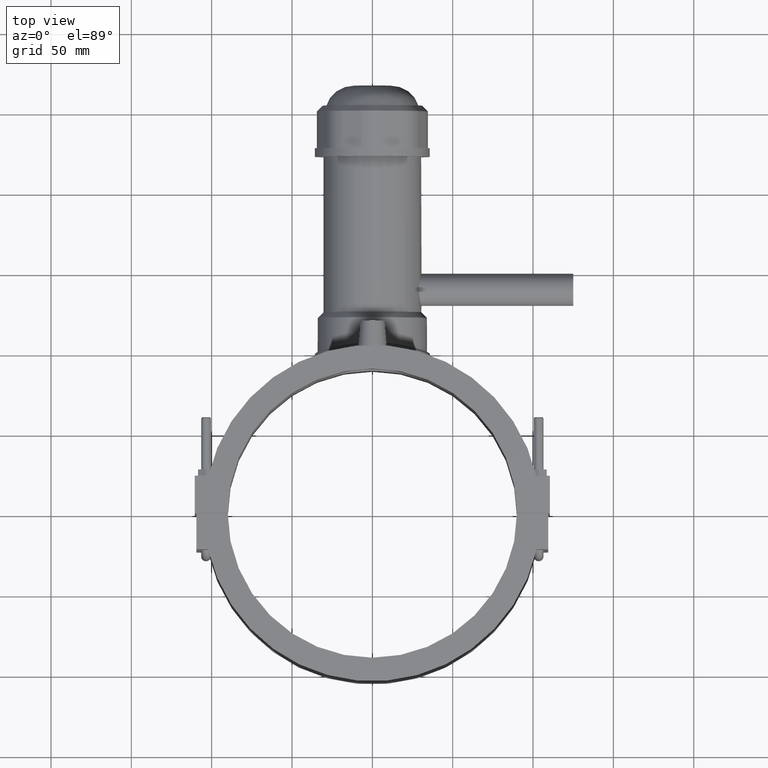
[diagram: clean part render]
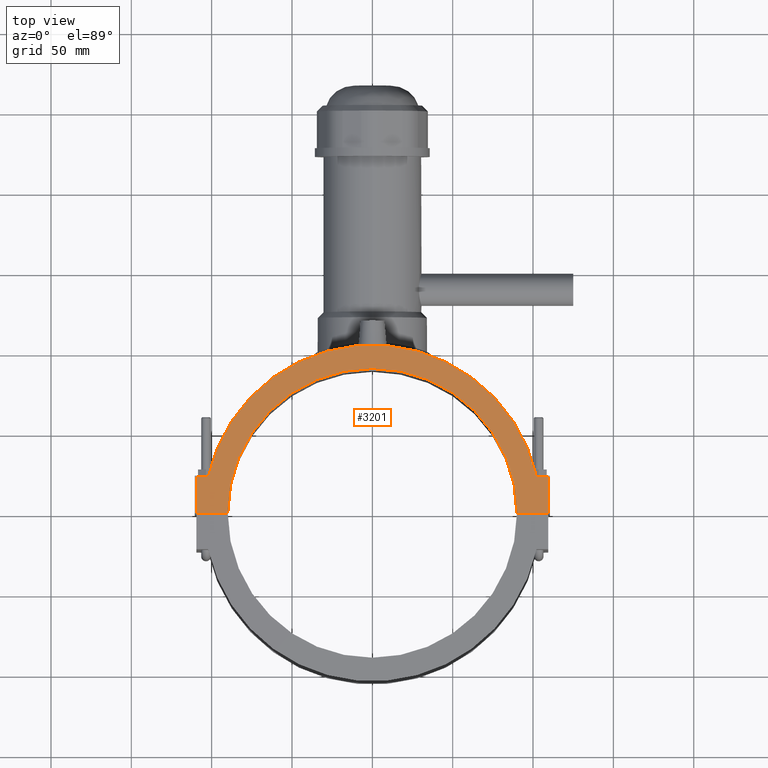
[diagram: same view with one face highlighted and labeled with its STEP entity id]
A machine part, top view. The second image highlights one B-rep face of the part: STEP entity #3201.
In plain terms, the highlighted planar face has unit normal (0, 0, 1).
Its self-contained STEP definition (entity closure, byte-faithful):
#128=LINE('',#5258,#407);
#169=LINE('',#5552,#448);
#212=LINE('',#5800,#491);
#214=LINE('',#5803,#493);
#269=LINE('',#6153,#548);
#314=LINE('',#6457,#593);
#407=VECTOR('',#3796,7.29534695523888);
#448=VECTOR('',#3871,22.45);
#491=VECTOR('',#3950,22.45);
#493=VECTOR('',#3954,7.29534695523888);
#548=VECTOR('',#4163,19.50001388889);
#593=VECTOR('',#4320,19.50001388889);
#936=FACE_OUTER_BOUND('',#1175,.T.);
#1175=EDGE_LOOP('',(#2900,#2901,#2902,#2903,#2904,#2905,#2906,#2907));
#1219=CIRCLE('',#3303,104.652);
#1281=CIRCLE('',#3485,90.);
#1379=VERTEX_POINT('',#5227);
#1380=VERTEX_POINT('',#5228);
#1390=VERTEX_POINT('',#5256);
#1440=VERTEX_POINT('',#5550);
#1476=VERTEX_POINT('',#5797);
#1477=VERTEX_POINT('',#5799);
#1533=VERTEX_POINT('',#6151);
#1574=VERTEX_POINT('',#6456);
#1713=EDGE_CURVE('',#1379,#1380,#1219,.T.);
#1728=EDGE_CURVE('',#1380,#1390,#128,.T.);
#1790=EDGE_CURVE('',#1390,#1440,#169,.T.);
#1842=EDGE_CURVE('',#1477,#1476,#212,.T.);
#1844=EDGE_CURVE('',#1476,#1379,#214,.T.);
#1934=EDGE_CURVE('',#1440,#1533,#269,.T.);
#2006=EDGE_CURVE('',#1574,#1477,#314,.T.);
#2012=EDGE_CURVE('',#1533,#1574,#1281,.T.);
#2900=ORIENTED_EDGE('',*,*,#2006,.T.);
#2901=ORIENTED_EDGE('',*,*,#1842,.T.);
#2902=ORIENTED_EDGE('',*,*,#1844,.T.);
#2903=ORIENTED_EDGE('',*,*,#1713,.T.);
#2904=ORIENTED_EDGE('',*,*,#1728,.T.);
#2905=ORIENTED_EDGE('',*,*,#1790,.T.);
#2906=ORIENTED_EDGE('',*,*,#1934,.T.);
#2907=ORIENTED_EDGE('',*,*,#2012,.T.);
#3017=PLANE('',#3488);
#3201=ADVANCED_FACE('',(#936),#3017,.T.);
#3303=AXIS2_PLACEMENT_3D('',#5229,#3767,#3768);
#3485=AXIS2_PLACEMENT_3D('',#6468,#4332,#4333);
#3488=AXIS2_PLACEMENT_3D('',#6471,#4338,#4339);
#3767=DIRECTION('center_axis',(0.,0.,1.));
#3768=DIRECTION('ref_axis',(0.976614427290077,0.21499828001376,0.));
#3796=DIRECTION('',(-1.,0.,0.));
#3871=DIRECTION('',(0.,-1.,0.));
#3950=DIRECTION('',(0.,1.,0.));
#3954=DIRECTION('',(-1.,0.,0.));
#4163=DIRECTION('',(1.,-1.58422235249023E-19,0.));
#4320=DIRECTION('',(1.,-1.58422235249023E-19,0.));
#4332=DIRECTION('center_axis',(0.,0.,-1.));
#4333=DIRECTION('ref_axis',(-1.,0.,0.));
#4338=DIRECTION('center_axis',(0.,0.,1.));
#4339=DIRECTION('ref_axis',(1.,0.,0.));
#5227=CARTESIAN_POINT('',(102.204653044761,22.5,59.));
#5228=CARTESIAN_POINT('',(-102.204653044761,22.5,59.));
#5229=CARTESIAN_POINT('Origin',(0.,0.,59.));
#5256=CARTESIAN_POINT('',(-109.5,22.5,59.));
#5258=CARTESIAN_POINT('',(-100.102497471342,22.5,59.));
#5550=CARTESIAN_POINT('',(-109.5,0.0499999999999989,59.));
#5552=CARTESIAN_POINT('',(-109.5,22.5,59.));
#5797=CARTESIAN_POINT('',(109.5,22.5,59.));
#5799=CARTESIAN_POINT('',(109.5,0.0499999999999989,59.));
#5800=CARTESIAN_POINT('',(109.5,-22.5,59.));
#5803=CARTESIAN_POINT('',(109.5,22.5,59.));
#6151=CARTESIAN_POINT('',(-89.99998611111,0.0499999999999989,59.));
#6153=CARTESIAN_POINT('',(1.79648330050455,0.0499999999999989,59.));
#6456=CARTESIAN_POINT('',(89.99998611111,0.0499999999999989,59.));
#6457=CARTESIAN_POINT('',(1.79648330050455,0.0499999999999989,59.));
#6468=CARTESIAN_POINT('Origin',(0.,0.,59.));
#6471=CARTESIAN_POINT('Origin',(-105.907033398991,1.00372537223288E-16,
59.));